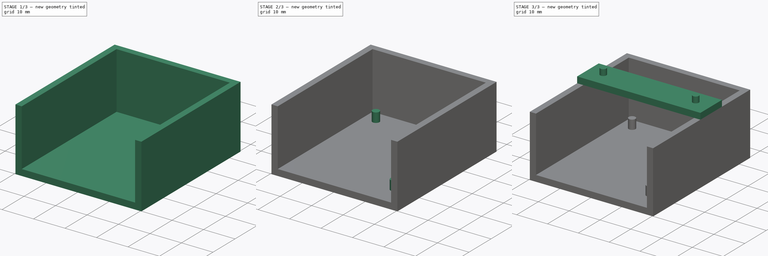
[diagram: build sequence overview — one tinted view per stage of 3, left to right]
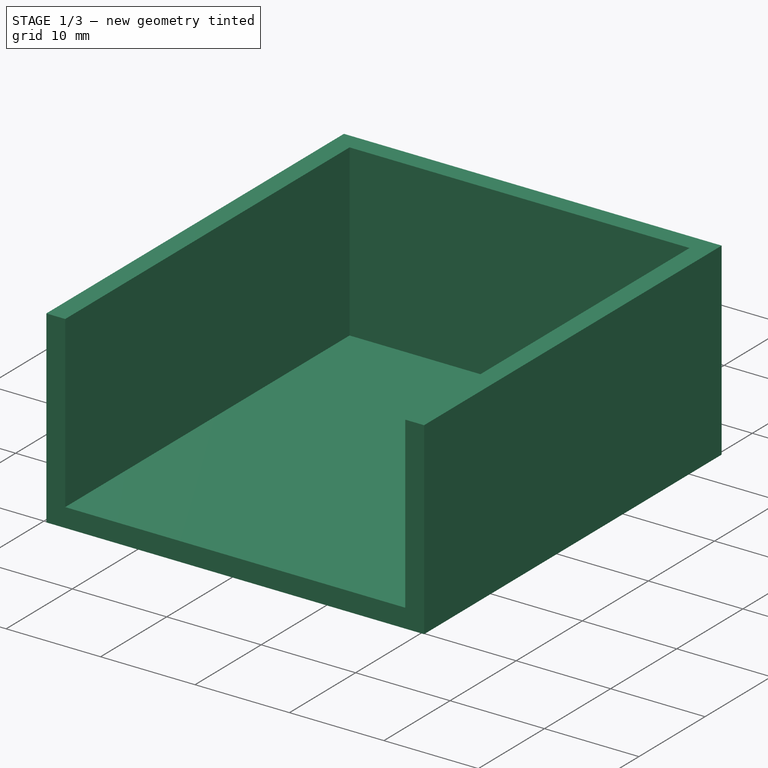
[diagram: stage 1 of 3 — iso view after this stage's code; geometry added in this stage tinted green]
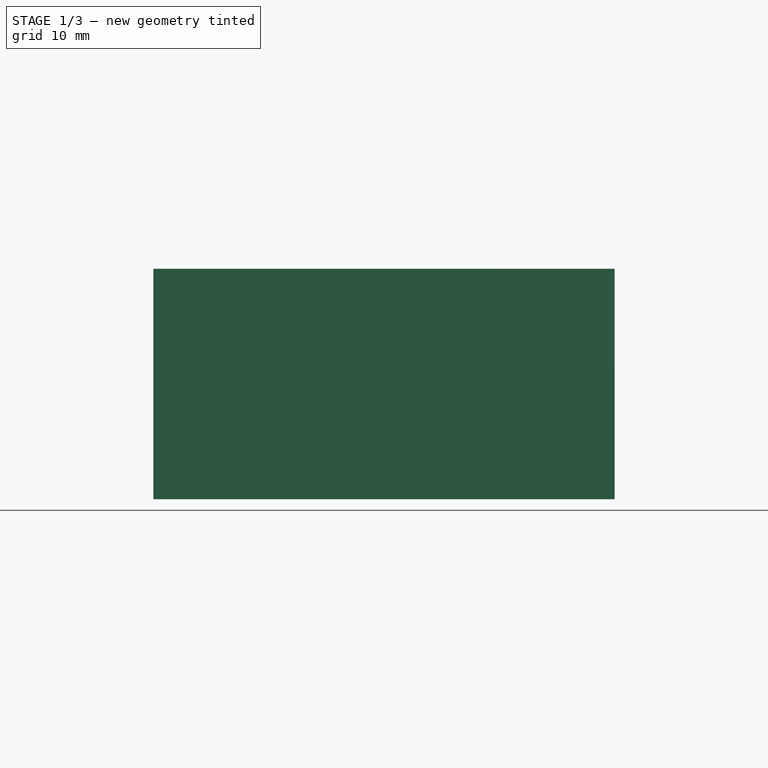
[diagram: stage 1 of 3 — front view after this stage's code; geometry added in this stage tinted green]
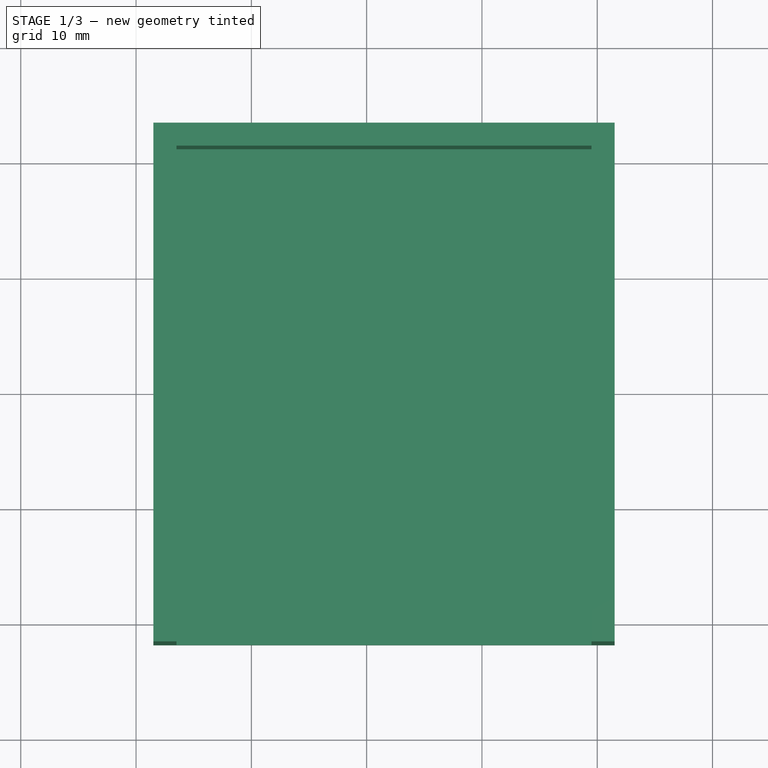
[diagram: stage 1 of 3 — top view after this stage's code; geometry added in this stage tinted green]
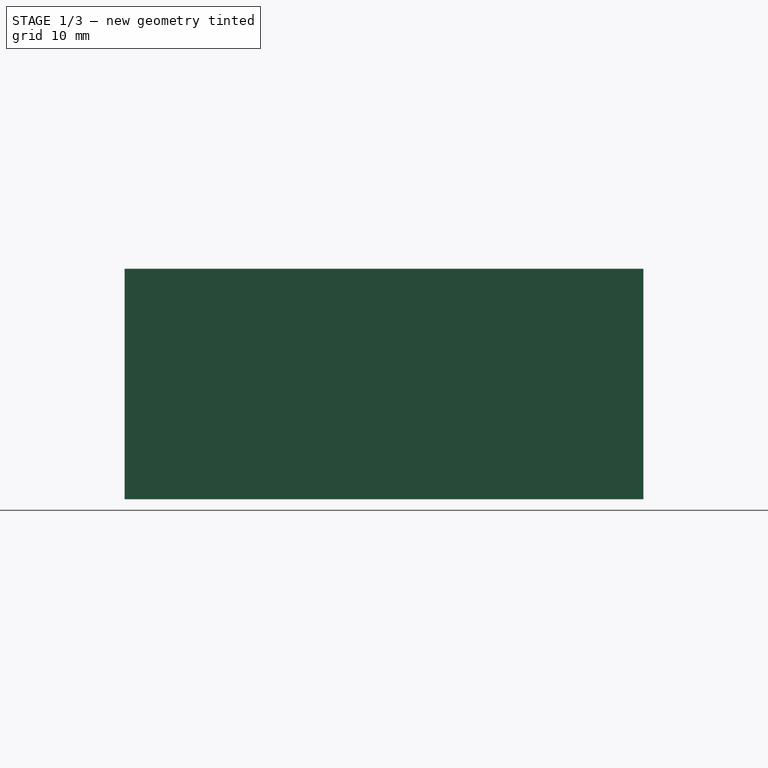
[diagram: stage 1 of 3 — right view after this stage's code; geometry added in this stage tinted green]
FCSTD DOCUMENT  (FreeCAD 0.16R6705 (Git))
Label: motion_sensor_case_2
License: All rights reserved
LicenseURL: http://en.wikipedia.org/wiki/All_rights_reserved
objects: Sketcher::SketchObject×5, PartDesign::Pad×4, PartDesign::Pocket×1
note: 15 computed .brp shape members not serialized (recipe doc carries the construction recipe); baked Part::Feature solids carry a one-line shape summary decoded from their .brp

FEATURE [Sketcher::SketchObject] Sketch
  sketch-geometry (4):
    g0: LineSegment StartX=-28.4952 StartY=33.2148 StartZ=0 EndX=11.5048 EndY=33.2148 EndZ=0
    g1: LineSegment StartX=11.5048 StartY=33.2148 StartZ=0 EndX=11.5048 EndY=-11.7852 EndZ=0
    g2: LineSegment StartX=11.5048 StartY=-11.7852 StartZ=0 EndX=-28.4952 EndY=-11.7852 EndZ=0
    g3: LineSegment StartX=-28.4952 StartY=-11.7852 StartZ=0 EndX=-28.4952 EndY=33.2148 EndZ=0
  constraints (10):
    c: Coincident(g0,g1)
    c: Coincident(g1,g2)
    c: Coincident(g2,g3)
    c: Coincident(g3,g0)
    c: Horizontal(g0)
    c: Horizontal(g2)
    c: Vertical(g1)
    c: Vertical(g3)
    c: DistanceX(g0,g0) = 40
    c: DistanceY(g1,g1) = 45
FEATURE [PartDesign::Pad] Pad
  Length = 20
  Length2 = 100
  Sketch = -> Sketch
  Type = 0
FEATURE [Sketcher::SketchObject] Sketch001
  ExternalGeometry = -> [Pad]
  Placement = pos=(0,0,20) rot=(0,0,1;0rad)
  Support = -> Pad [Face6]
  sketch-geometry (4):
    g0: LineSegment StartX=-26.4952 StartY=31.2148 StartZ=0 EndX=9.50485 EndY=31.2148 EndZ=0
    g1: LineSegment StartX=9.50485 StartY=31.2148 StartZ=0 EndX=9.50485 EndY=-15.4415 EndZ=0
    g2: LineSegment StartX=9.50485 StartY=-15.4415 StartZ=0 EndX=-26.4952 EndY=-15.4415 EndZ=0
    g3: LineSegment StartX=-26.4952 StartY=-15.4415 StartZ=0 EndX=-26.4952 EndY=31.2148 EndZ=0
  constraints (11):
    c: Coincident(g0,g1)
    c: Coincident(g1,g2)
    c: Coincident(g2,g3)
    c: Coincident(g3,g0)
    c: Horizontal(g0)
    c: Horizontal(g2)
    c: Vertical(g1)
    c: Vertical(g3)
    c: Distance(g1,g-5) = 2
    c: Distance(g2,g-3) = 2
    c: Distance(g0,g-6) = 2
FEATURE [PartDesign::Pocket] Pocket
  Length = 18
  Sketch = -> Sketch001
  Type = 0
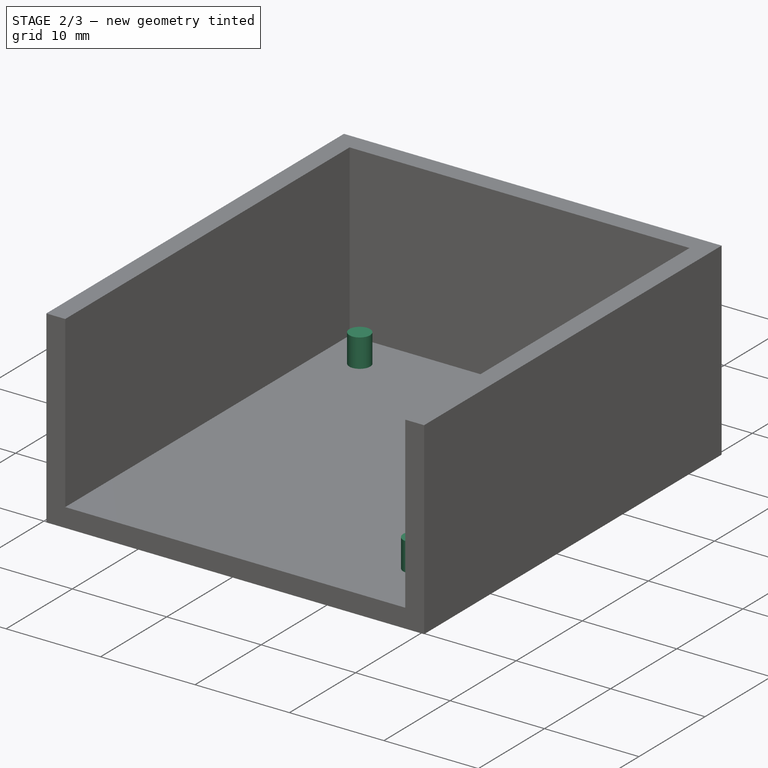
[diagram: stage 2 of 3 — iso view after this stage's code; geometry added in this stage tinted green]
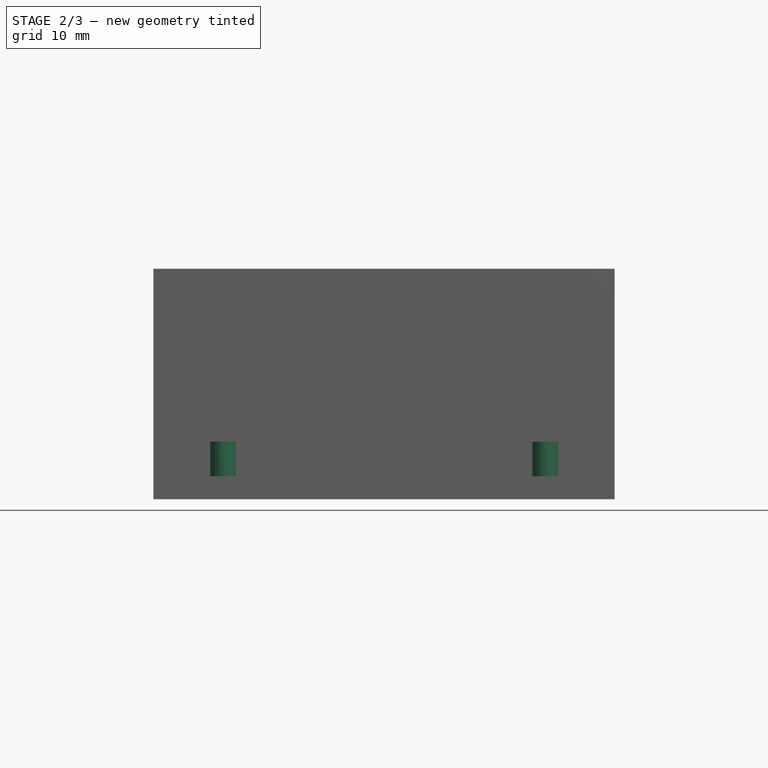
[diagram: stage 2 of 3 — front view after this stage's code; geometry added in this stage tinted green]
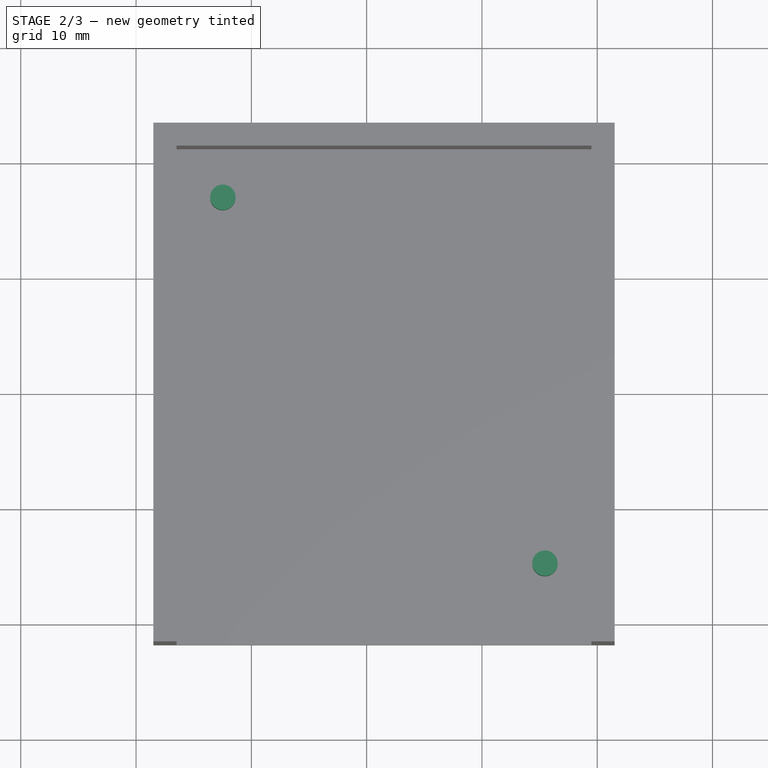
[diagram: stage 2 of 3 — top view after this stage's code; geometry added in this stage tinted green]
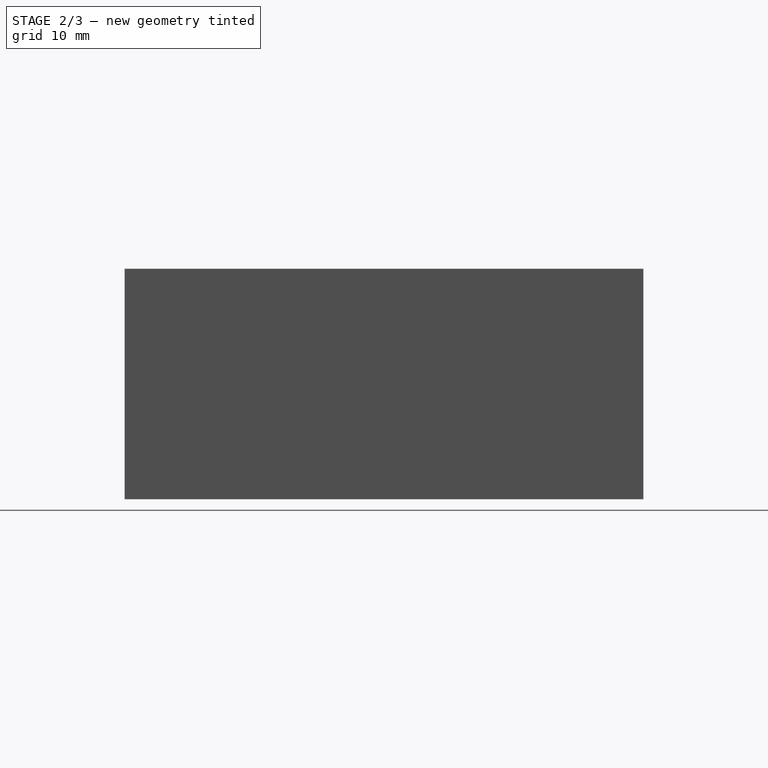
[diagram: stage 2 of 3 — right view after this stage's code; geometry added in this stage tinted green]
FEATURE [Sketcher::SketchObject] Sketch002
  ExternalGeometry = -> [Pocket]
  Placement = pos=(0,0,2) rot=(0,0,1;0rad)
  Support = -> Pocket [Face10]
  sketch-geometry (2):
    g0: Circle CenterX=-22.475 CenterY=27.0095 CenterZ=0 NormalX=0 NormalY=0 NormalZ=1 Radius=1.1
    g1: Circle CenterX=5.46499 CenterY=-4.74047 CenterZ=0 NormalX=0 NormalY=0 NormalZ=1 Radius=1.1
  constraints (4):
    c: Radius(g1) = 1.1
    c: Radius(g0) = 1.1
    c: DistanceX(g0,g1) = 27.94
    c: DistanceY(g1,g0) = 31.75
FEATURE [PartDesign::Pad] Pad001
  Length = 3
  Length2 = 100
  Sketch = -> Sketch002
  Type = 0
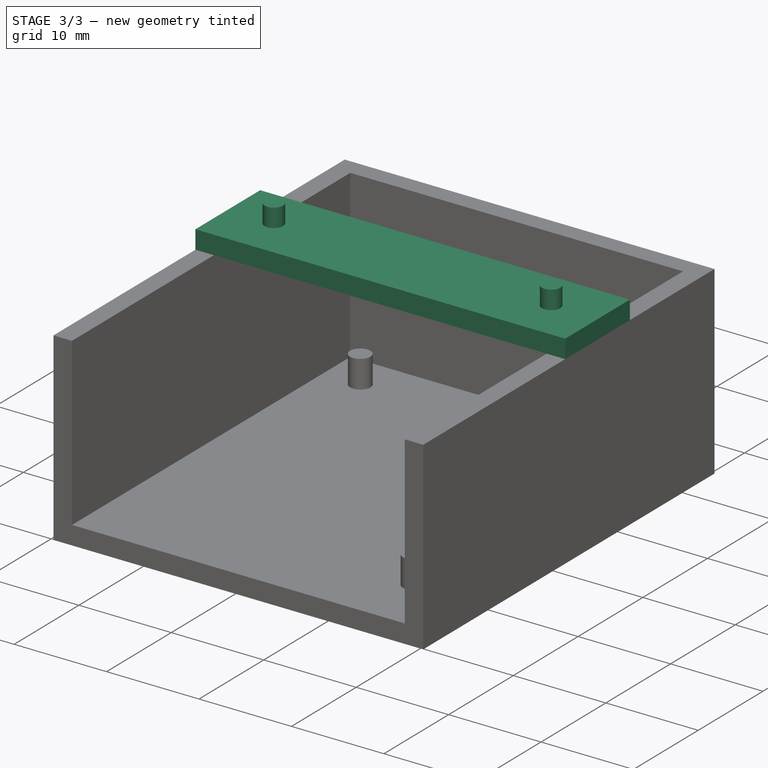
[diagram: stage 3 of 3 — iso view after this stage's code; geometry added in this stage tinted green]
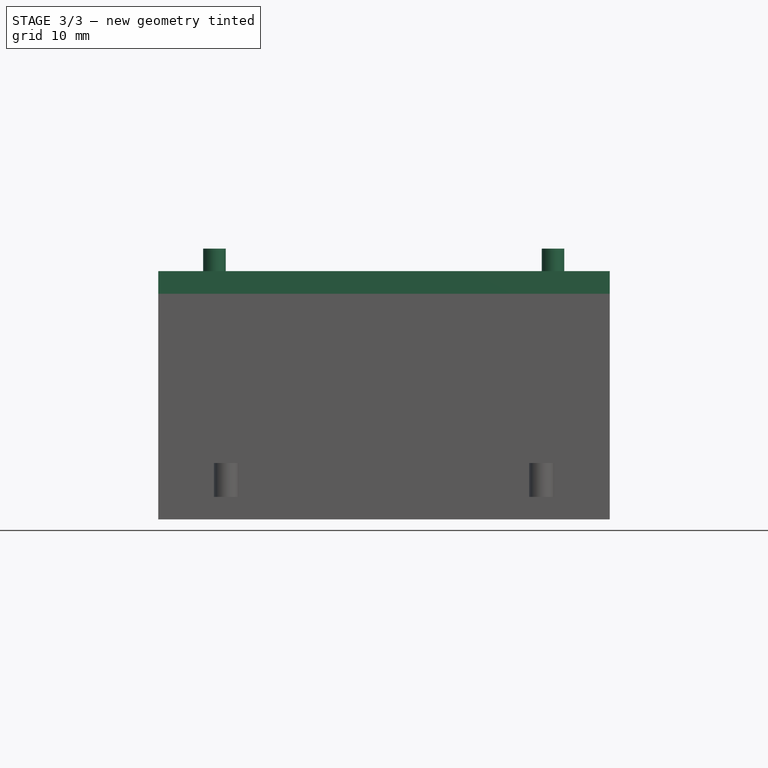
[diagram: stage 3 of 3 — front view after this stage's code; geometry added in this stage tinted green]
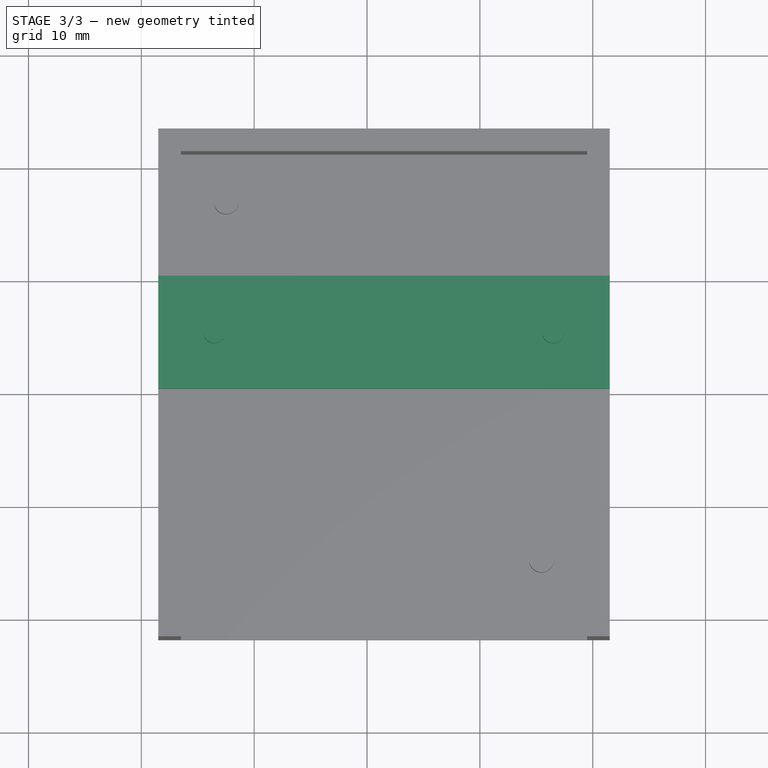
[diagram: stage 3 of 3 — top view after this stage's code; geometry added in this stage tinted green]
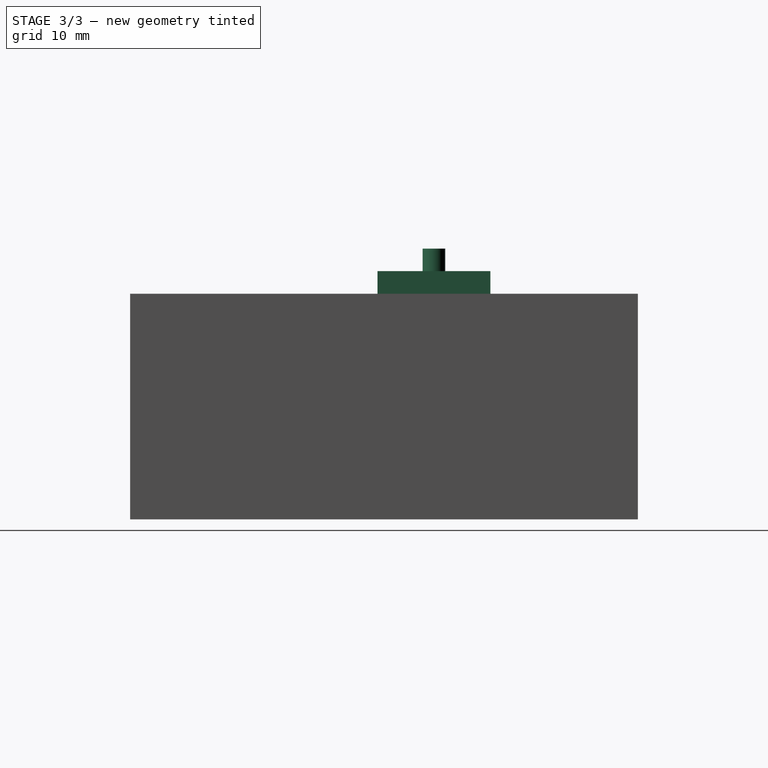
[diagram: stage 3 of 3 — right view after this stage's code; geometry added in this stage tinted green]
FEATURE [Sketcher::SketchObject] Sketch003
  ExternalGeometry = -> [Pad001]
  Placement = pos=(0,0,20) rot=(0,0,1;0rad)
  Support = -> Pad001 [Face5]
  sketch-geometry (4):
    g0: LineSegment StartX=-28.4952 StartY=20.1423 StartZ=0 EndX=11.5048 EndY=20.1423 EndZ=0
    g1: LineSegment StartX=11.5048 StartY=20.1423 StartZ=0 EndX=11.5048 EndY=10.1423 EndZ=0
    g2: LineSegment StartX=11.5048 StartY=10.1423 StartZ=0 EndX=-28.4952 EndY=10.1423 EndZ=0
    g3: LineSegment StartX=-28.4952 StartY=10.1423 StartZ=0 EndX=-28.4952 EndY=20.1423 EndZ=0
  constraints (11):
    c: Coincident(g0,g1)
    c: Coincident(g1,g2)
    c: Coincident(g2,g3)
    c: Coincident(g3,g0)
    c: Horizontal(g0)
    c: Horizontal(g2)
    c: Vertical(g1)
    c: Vertical(g3)
    c: DistanceY(g3,g3) = 10
    c: DistanceX(g-3,g0) = 0
    c: DistanceX(g0,g-4) = 0
FEATURE [PartDesign::Pad] Pad002
  Length = 2
  Length2 = 100
  Sketch = -> Sketch003
  Type = 0
FEATURE [Sketcher::SketchObject] Sketch004
  ExternalGeometry = -> [Pad002]
  Placement = pos=(0,0,22) rot=(0,0,1;0rad)
  Support = -> Pad002 [Face17]
  sketch-geometry (2):
    g0: Circle CenterX=-23.5181 CenterY=15.1423 CenterZ=0 NormalX=0 NormalY=0 NormalZ=1 Radius=1
    g1: Circle CenterX=6.4819 CenterY=15.1423 CenterZ=0 NormalX=0 NormalY=0 NormalZ=1 Radius=1
  constraints (5):
    c: Radius(g0) = 1
    c: Radius(g1) = 1
    c: DistanceX(g0,g1) = 30
    c: DistanceY(g1,g0) = 0
    c: DistanceY(g-3,g1) = 5
FEATURE [PartDesign::Pad] Pad003
  Length = 2
  Length2 = 100
  Sketch = -> Sketch004
  Type = 0
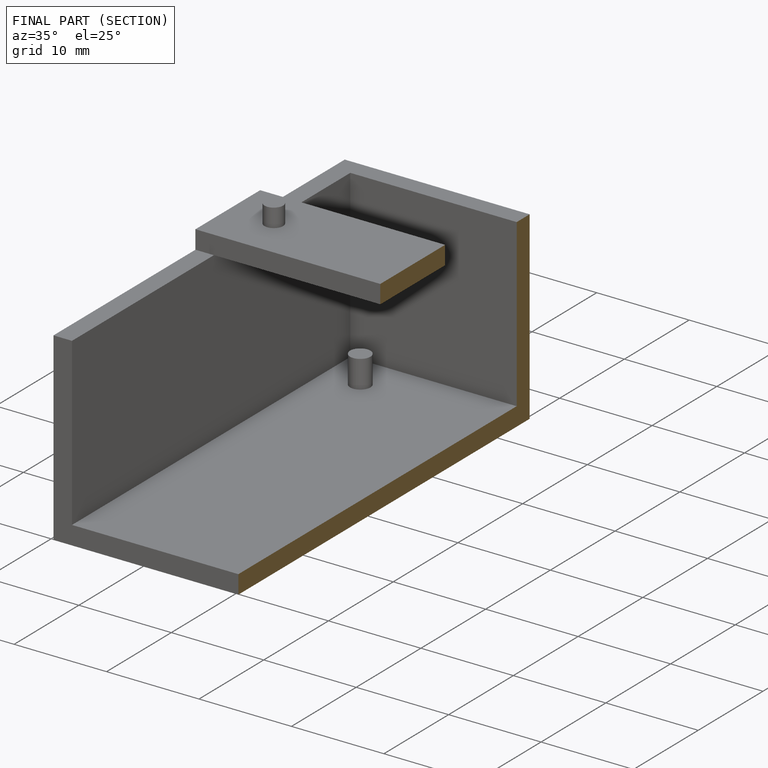
[diagram: finished part — half-section view (interior)]
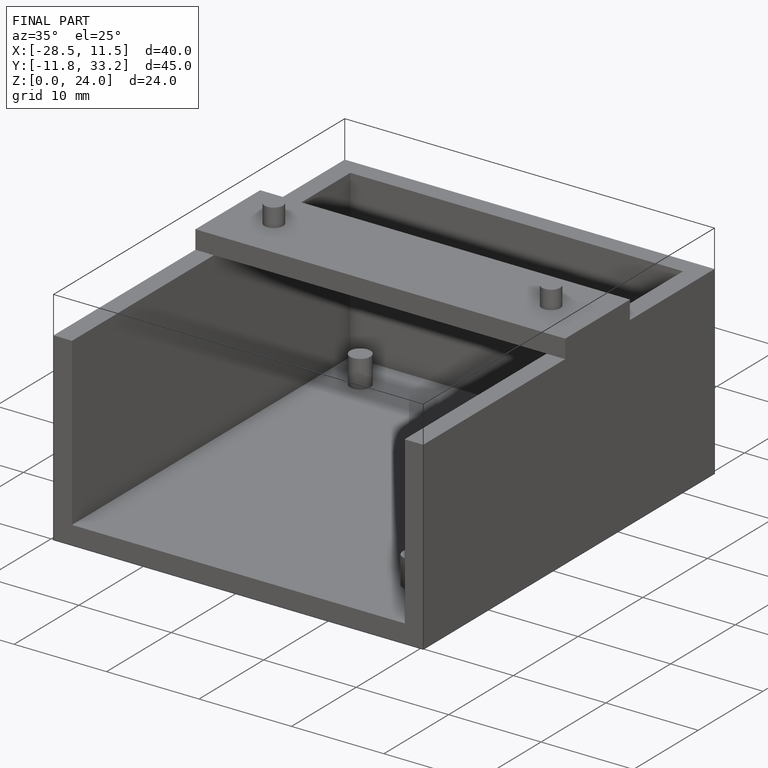
[diagram: finished part — iso view with bounding-box wireframe]
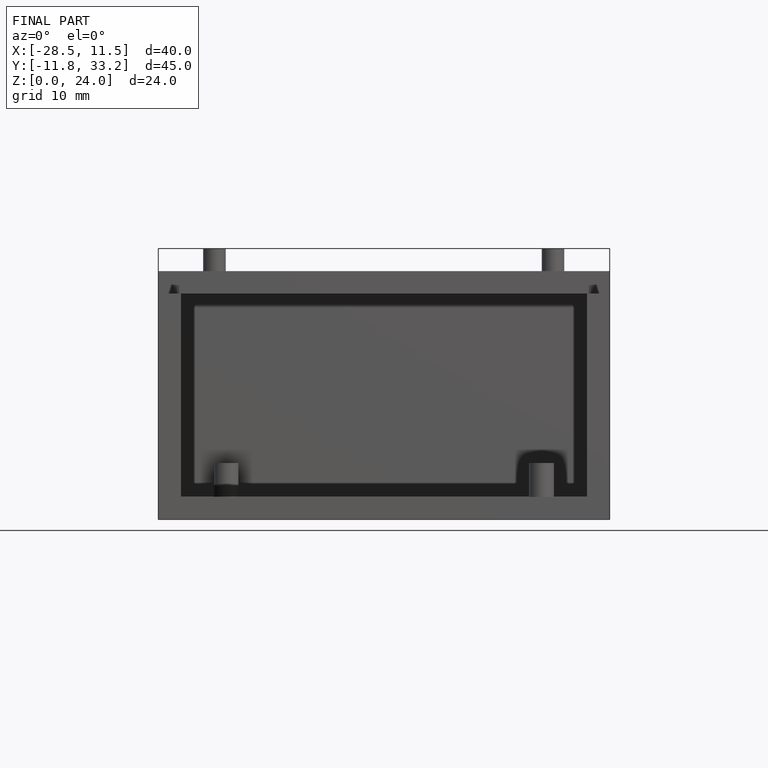
[diagram: finished part — front view with bounding-box wireframe]
